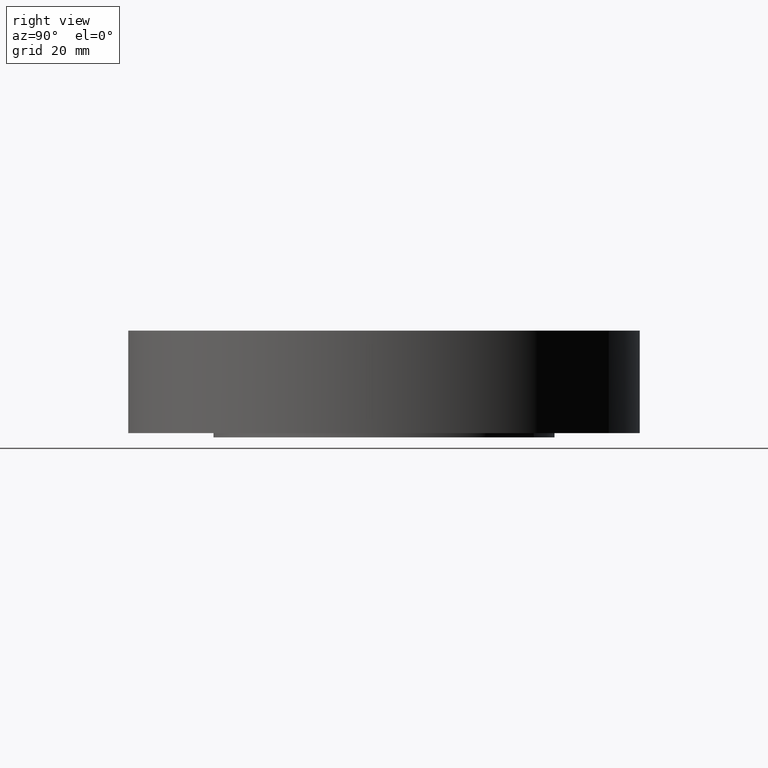
[diagram: clean part render]
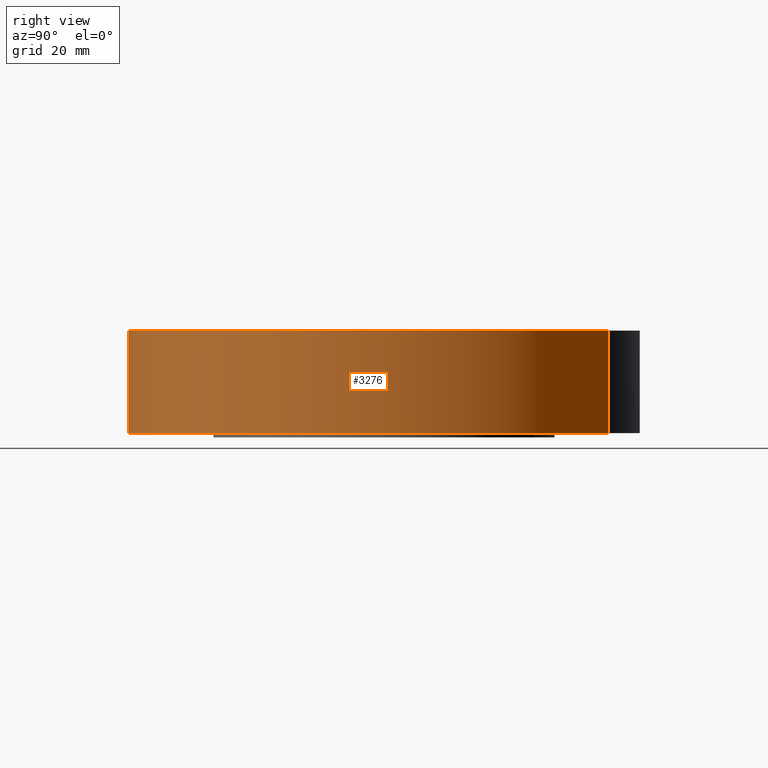
[diagram: same view with one face highlighted and labeled with its STEP entity id]
A machine part, right view. The second image highlights one B-rep face of the part: STEP entity #3276.
In plain terms, the highlighted cylindrical surface (partial cylindrical patch) has radius 95.25 mm, axis along (0, 0, -1).
Its self-contained STEP definition (entity closure, byte-faithful):
#3150=AXIS2_PLACEMENT_3D('Circle Axis2P3D',#3148,#3149,$) ;
#3237=AXIS2_PLACEMENT_3D('Cylinder Axis2P3D',#3234,#3235,#3236) ;
#3267=AXIS2_PLACEMENT_3D('Circle Axis2P3D',#3265,#3266,$) ;
#3143=CARTESIAN_POINT('Vertex',(-1.79784576977,-3.2909346071,-4.02827377754E-014)) ;
#3145=CARTESIAN_POINT('Vertex',(1.79784576977,3.2909346071,-4.02827377754E-014)) ;
#3148=CARTESIAN_POINT('Axis2P3D Location',(0.,0.,0.)) ;
#3234=CARTESIAN_POINT('Axis2P3D Location',(0.,0.,0.718750000003)) ;
#3239=CARTESIAN_POINT('Line Origine',(-1.79784576977,-3.2909346071,0.750000000003)) ;
#3243=CARTESIAN_POINT('Vertex',(-1.79784576977,-3.2909346071,1.50000000001)) ;
#3250=CARTESIAN_POINT('Vertex',(1.79784576977,3.2909346071,1.50000000001)) ;
#3253=CARTESIAN_POINT('Line Origine',(1.79784576977,3.2909346071,0.750000000003)) ;
#3265=CARTESIAN_POINT('Axis2P3D Location',(0.,0.,1.50000000001)) ;
#3149=DIRECTION('Axis2P3D Direction',(0.,0.,-0.0393700787402)) ;
#3235=DIRECTION('Axis2P3D Direction',(0.,0.,-0.0393700787402)) ;
#3236=DIRECTION('Axis2P3D XDirection',(0.0188750212049,0.0345504945626,0.)) ;
#3240=DIRECTION('Vector Direction',(0.,0.,-0.0393700787402)) ;
#3254=DIRECTION('Vector Direction',(0.,0.,-0.0393700787402)) ;
#3266=DIRECTION('Axis2P3D Direction',(0.,0.,-0.0393700787402)) ;
#3241=VECTOR('Line Direction',#3240,0.0393700787402) ;
#3255=VECTOR('Line Direction',#3254,0.0393700787402) ;
#3271=ORIENTED_EDGE('',*,*,#3152,.F.) ;
#3272=ORIENTED_EDGE('',*,*,#3257,.T.) ;
#3273=ORIENTED_EDGE('',*,*,#3269,.T.) ;
#3274=ORIENTED_EDGE('',*,*,#3245,.F.) ;
#3276=ADVANCED_FACE('PartBody',(#3275),#3238,.T.) ;
#3151=CIRCLE('generated circle',#3150,3.75000000001) ;
#3268=CIRCLE('generated circle',#3267,3.75000000002) ;
#3238=CYLINDRICAL_SURFACE('generated cylinder',#3237,3.75000000002) ;
#3152=EDGE_CURVE('',#3146,#3144,#3151,.T.) ;
#3245=EDGE_CURVE('',#3144,#3244,#3242,.F.) ;
#3257=EDGE_CURVE('',#3146,#3251,#3256,.F.) ;
#3269=EDGE_CURVE('',#3251,#3244,#3268,.T.) ;
#3270=EDGE_LOOP('',(#3271,#3272,#3273,#3274)) ;
#3275=FACE_OUTER_BOUND('',#3270,.T.) ;
#3242=LINE('Line',#3239,#3241) ;
#3256=LINE('Line',#3253,#3255) ;
#3144=VERTEX_POINT('',#3143) ;
#3146=VERTEX_POINT('',#3145) ;
#3244=VERTEX_POINT('',#3243) ;
#3251=VERTEX_POINT('',#3250) ;